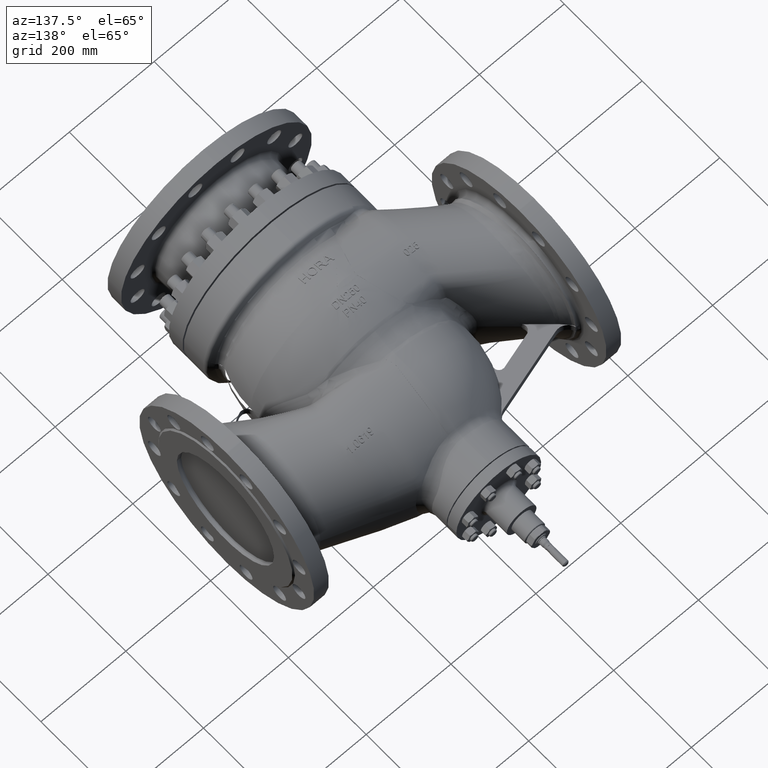
[diagram: clean part render]
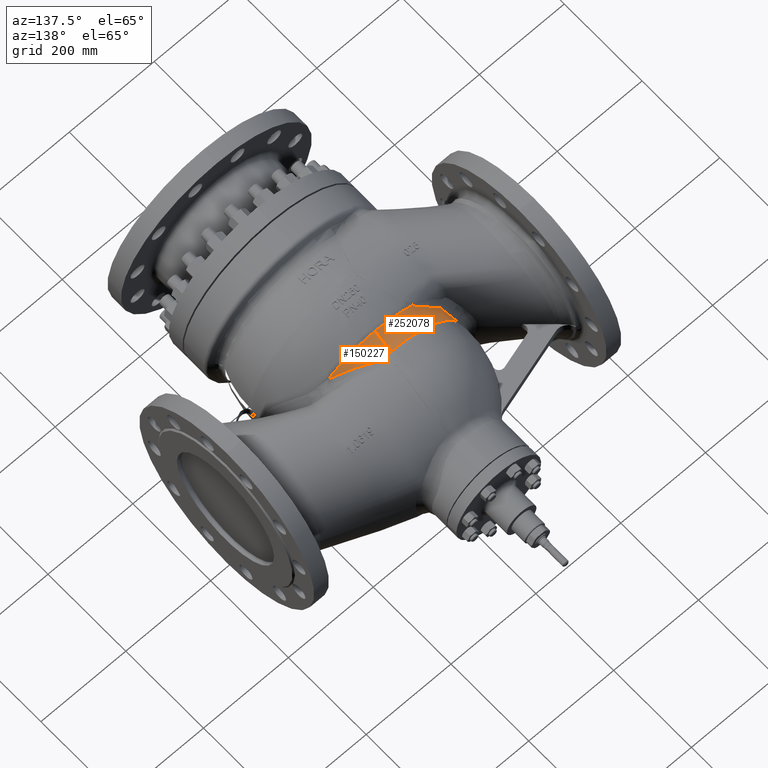
[diagram: same view with one multi-face feature highlighted, each face labeled with its STEP entity id]
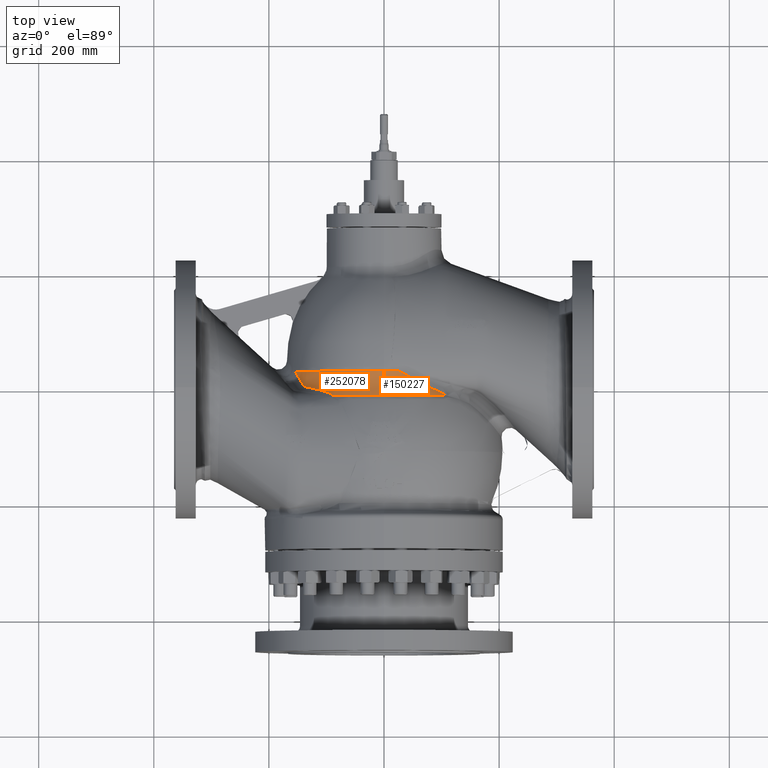
[diagram: same view with one multi-face feature highlighted, each face labeled with its STEP entity id]
A machine part, auxiliary view. The highlighted faces form ONE feature: a constant-radius fillet chain: 2 tangent blend faces with common blend radius 75 mm. The faces share edges in the B-rep.
A second angle (top view) of the same feature is appended — it is thin or edge-on in the first view.
Their STEP definitions:
[1] entity #150227 (Torus):
#2913 = AXIS2_PLACEMENT_3D ( 'NONE', #307393, #158618, #9535 ) ;
#6112 = CARTESIAN_POINT ( 'NONE',  ( 82.07941456179558800, -0.5932283761172524300, 153.6694419497984000 ) ) ;
#9535 = DIRECTION ( 'NONE',  ( 2.775557561562891400E-017, 1.000000000000000000, 0.0000000000000000000 ) ) ;
#19513 = DIRECTION ( 'NONE',  ( 1.000000000000000000, -2.067803239439582300E-017, 0.0000000000000000000 ) ) ;
#24154 = B_SPLINE_CURVE_WITH_KNOTS ( 'NONE', 3,
 ( #130182, #254054, #155174, #6112, #180207, #31117, #205157, #56192, #230157, #81201, #255109, #106220, #280053, #131236 ),
 .UNSPECIFIED., .F., .F.,
 ( 4, 2, 2, 2, 2, 2, 4 ),
 ( 1.271920262156900300E-016, 0.02442169535215101300, 0.04884339070430189500, 0.07326508605645273800, 0.08547593373252816700, 0.09158135757056588800, 0.09768678140860359600 ),
 .UNSPECIFIED. ) ;
#25236 = CARTESIAN_POINT ( 'NONE',  ( -3.031444794915531700E-015, -13.60108526476872700, 181.5415285384767700 ) ) ;
#26183 = CIRCLE ( 'NONE', #2913, 75.00000000000000000 ) ;
#31117 = CARTESIAN_POINT ( 'NONE',  ( 60.88595231698156600, 10.23721949783503500, 159.1527436924764100 ) ) ;
#32072 = DIRECTION ( 'NONE',  ( -1.461890767231333100E-017, 2.338326614928977800E-017, 1.000000000000000000 ) ) ;
#41183 = TOROIDAL_SURFACE ( 'NONE', #217003, 242.7841917345049900, 75.00000000000000000 ) ;
#45388 = CARTESIAN_POINT ( 'NONE',  ( 110.4396305773874600, -13.60108526476873800, 144.0847479159981800 ) ) ;
#56192 = CARTESIAN_POINT ( 'NONE',  ( 43.22994871536861400, 19.76275971794608900, 162.8158313028832500 ) ) ;
#67869 = CARTESIAN_POINT ( 'NONE',  ( -3.775059505209045100E-016, -13.60108526476872400, 3.180377966652705200E-016 ) ) ;
#70807 = AXIS2_PLACEMENT_3D ( 'NONE', #67869, #241780, #92861 ) ;
#81201 = CARTESIAN_POINT ( 'NONE',  ( 34.39855360080698400, 24.65274385075994300, 164.3965068610333200 ) ) ;
#83821 = ORIENTED_EDGE ( 'NONE', *, *, #268510, .T. ) ;
#92861 = DIRECTION ( 'NONE',  ( -1.461890767231333100E-017, -6.688863110053627500E-017, 1.000000000000000000 ) ) ;
#101066 = CARTESIAN_POINT ( 'NONE',  ( -1.628688640482993800E-015, 29.69251939755810500, 167.7841917345050400 ) ) ;
#106118 = DIRECTION ( 'NONE',  ( -2.775557561562891400E-017, -1.000000000000000000, 2.338326614928978400E-017 ) ) ;
#106220 = CARTESIAN_POINT ( 'NONE',  ( 29.11645026787667900, 27.64245697771958600, 165.2697927074587500 ) ) ;
#120517 = VERTEX_POINT ( 'NONE', #25236 ) ;
#129105 = ORIENTED_EDGE ( 'NONE', *, *, #209020, .T. ) ;
#130182 = CARTESIAN_POINT ( 'NONE',  ( 110.4396305773874600, -13.60108526476873800, 144.0847479159981800 ) ) ;
#131236 = CARTESIAN_POINT ( 'NONE',  ( 25.62306450949779100, 29.69251939755797700, 165.8161438495759200 ) ) ;
#137633 = EDGE_CURVE ( 'NONE', #302315, #120517, #162623, .T. ) ;
#138114 = ORIENTED_EDGE ( 'NONE', *, *, #245362, .F. ) ;
#150227 = ADVANCED_FACE ( 'NONE', ( #297868 ), #41183, .F. ) ;
#152708 = EDGE_LOOP ( 'NONE', ( #129105, #83821, #138114, #215026 ) ) ;
#155174 = CARTESIAN_POINT ( 'NONE',  ( 96.23918685965621500, -7.352562097454849300, 149.2746223159857100 ) ) ;
#158618 = DIRECTION ( 'NONE',  ( 1.000000000000000000, -2.775557561562891400E-017, 1.461890767231332800E-017 ) ) ;
#162623 = CIRCLE ( 'NONE', #70807, 181.5415285384767400 ) ;
#168610 = DIRECTION ( 'NONE',  ( -2.775557561562891400E-017, -1.000000000000000000, 2.338326614928978400E-017 ) ) ;
#173780 = CARTESIAN_POINT ( 'NONE',  ( 25.62306450949779100, 29.69251939755797700, 165.8161438495759200 ) ) ;
#180207 = CARTESIAN_POINT ( 'NONE',  ( 75.01216007228062200, 2.941106952050789300, 155.6272869529655100 ) ) ;
#202106 = VERTEX_POINT ( 'NONE', #173780 ) ;
#205157 = CARTESIAN_POINT ( 'NONE',  ( 53.82687267385746600, 13.99946323530676300, 160.7190252771280800 ) ) ;
#209020 = EDGE_CURVE ( 'NONE', #302315, #202106, #24154, .T. ) ;
#215026 = ORIENTED_EDGE ( 'NONE', *, *, #137633, .F. ) ;
#217003 = AXIS2_PLACEMENT_3D ( 'NONE', #304919, #106118, #32072 ) ;
#224465 = AXIS2_PLACEMENT_3D ( 'NONE', #317318, #168610, #19513 ) ;
#230157 = CARTESIAN_POINT ( 'NONE',  ( 39.69503281044711000, 21.70352783413202900, 163.4725023008315600 ) ) ;
#241780 = DIRECTION ( 'NONE',  ( -2.775557561562891400E-017, -1.000000000000000000, 2.338326614928978400E-017 ) ) ;
#245362 = EDGE_CURVE ( 'NONE', #120517, #311863, #26183, .T. ) ;
#254054 = CARTESIAN_POINT ( 'NONE',  ( 103.3321264543338900, -10.57792365335696000, 146.8398777761574400 ) ) ;
#255109 = CARTESIAN_POINT ( 'NONE',  ( 32.63473260823651900, 25.64182972961951300, 164.6942130904878100 ) ) ;
#268510 = EDGE_CURVE ( 'NONE', #202106, #311863, #274316, .T. ) ;
#274316 = CIRCLE ( 'NONE', #224465, 167.7841917345049900 ) ;
#280053 = CARTESIAN_POINT ( 'NONE',  ( 27.36036842507767400, 28.65270359192004100, 165.5476835581467900 ) ) ;
#297868 = FACE_OUTER_BOUND ( 'NONE', #152708, .T. ) ;
#302315 = VERTEX_POINT ( 'NONE', #45388 ) ;
#304919 = CARTESIAN_POINT ( 'NONE',  ( 8.241329673574520500E-016, 29.69251939755809700, -6.943080837160505700E-016 ) ) ;
#307393 = CARTESIAN_POINT ( 'NONE',  ( -2.725106715906494300E-015, 29.69251939755808000, 242.7841917345050400 ) ) ;
#311863 = VERTEX_POINT ( 'NONE', #101066 ) ;
#317318 = CARTESIAN_POINT ( 'NONE',  ( 8.241329673574523400E-016, 29.69251939755810800, -6.943080837160507600E-016 ) ) ;
[2] entity #252078 (Torus):
#1016 = AXIS2_PLACEMENT_3D ( 'NONE', #229576, #7649, #32658 ) ;
#2913 = AXIS2_PLACEMENT_3D ( 'NONE', #307393, #158618, #9535 ) ;
#7649 = DIRECTION ( 'NONE',  ( -2.775557561562891400E-017, -1.000000000000000000, 2.338326614928978400E-017 ) ) ;
#9535 = DIRECTION ( 'NONE',  ( 2.775557561562891400E-017, 1.000000000000000000, 0.0000000000000000000 ) ) ;
#10255 = CARTESIAN_POINT ( 'NONE',  ( -154.2426626617547400, 29.69251939755813700, 66.03586912438773000 ) ) ;
#11339 = CARTESIAN_POINT ( 'NONE',  ( -141.9312288274274700, 8.784175920208644700, 94.93900444020526700 ) ) ;
#12422 = CARTESIAN_POINT ( 'NONE',  ( -139.0807071141081200, 4.326773991904644800, 101.5419510661839600 ) ) ;
#13492 = CARTESIAN_POINT ( 'NONE',  ( -131.6920456074775800, 1.390261255811628300, 112.7223098611463900 ) ) ;
#14120 = CARTESIAN_POINT ( 'NONE',  ( -96.57150497036950300, -8.422051248099240400, 149.7555299136765800 ) ) ;
#19507 = ORIENTED_EDGE ( 'NONE', *, *, #251511, .F. ) ;
#25236 = CARTESIAN_POINT ( 'NONE',  ( -3.031444794915531700E-015, -13.60108526476872700, 181.5415285384767700 ) ) ;
#25586 = CARTESIAN_POINT ( 'NONE',  ( -107.4097094008442500, -4.256566757903815600, 139.3278048455517500 ) ) ;
#25657 = CARTESIAN_POINT ( 'NONE',  ( -154.2426626617547400, 29.69251939755813700, 66.03586912438773000 ) ) ;
#26183 = CIRCLE ( 'NONE', #2913, 75.00000000000000000 ) ;
#32658 = DIRECTION ( 'NONE',  ( -1.461890767231333100E-017, 2.338326614928977800E-017, 1.000000000000000000 ) ) ;
#33274 = EDGE_CURVE ( 'NONE', #271755, #284115, #61485, .T. ) ;
#36362 = CARTESIAN_POINT ( 'NONE',  ( -141.1040152970627400, 7.336351651882386800, 96.93755518183003500 ) ) ;
#37453 = CARTESIAN_POINT ( 'NONE',  ( -138.6556492800292200, 3.944951168365110400, 102.3548835199600100 ) ) ;
#38535 = CARTESIAN_POINT ( 'NONE',  ( -126.9414742485827100, 0.1458555534374118800, 118.8096424778258800 ) ) ;
#39162 = CARTESIAN_POINT ( 'NONE',  ( -93.96576310566482000, -9.736499573810343500, 152.3367126622963800 ) ) ;
#47006 = ORIENTED_EDGE ( 'NONE', *, *, #33274, .T. ) ;
#50275 = CARTESIAN_POINT ( 'NONE',  ( -3.775059505209045100E-016, -13.60108526476872400, 3.180377966652705200E-016 ) ) ;
#56178 = CIRCLE ( 'NONE', #275468, 167.7841917345049900 ) ;
#61448 = CARTESIAN_POINT ( 'NONE',  ( -140.4652778327487700, 6.281639578875768000, 98.45086079004276800 ) ) ;
#61485 = B_SPLINE_CURVE_WITH_KNOTS ( 'NONE', 3,
 ( #10255, #283145, #259257, #110377, #284217, #135413, #309185, #160415, #11339, #185433, #36362, #210393, #61448, #235384, #86451, #260336, #111474, #285304, #136501, #310265, #161506, #12422, #186530, #37453, #211485, #62529, #236456, #87520, #261413, #112547, #286382, #137583, #311341, #162590, #13492, #187601, #38535, #212557, #63606, #237527, #88594, #262488, #113615, #287457, #138669, #312410, #163668, #25586, #287016, #138225, #311972, #163229, #14120, #188231, #39162, #213193, #64247, #238167, #89230, #263127 ),
 .UNSPECIFIED., .F., .F.,
 ( 4, 2, 2, 2, 2, 2, 2, 2, 2, 2, 2, 2, 2, 2, 2, 2, 2, 2, 2, 2, 2, 2, 2, 2, 2, 2, 2, 2, 2, 4 ),
 ( 0.01366503404333760400, 0.02927793532794119300, 0.04489083661254478200, 0.04879406193369569700, 0.05269728725484660500, 0.05464889991542203100, 0.05660051257599746400, 0.05757631890628519400, 0.05806422207142904900, 0.05855212523657291800, 0.05952793156686067600, 0.06050373789714843400, 0.06147954422743619900, 0.06245535055772395000, 0.06343115688801170800, 0.06440696321829947300, 0.06831018853945056100, 0.07611663918175276500, 0.08392308982405498300, 0.08782631514520608500, 0.08977792780578164300, 0.09172954046635718700, 0.09953599110865940500, 0.1073424417509616100, 0.1151488923932638100, 0.1229553430355660300, 0.1268585683567171600, 0.1307617936778682800, 0.1346650189990194500, 0.1385682443201705600 ),
 .UNSPECIFIED. ) ;
#62529 = CARTESIAN_POINT ( 'NONE',  ( -138.2016226132043600, 3.619328638672977500, 103.1676843516505800 ) ) ;
#63606 = CARTESIAN_POINT ( 'NONE',  ( -123.5825648844764700, -0.5725261671916634900, 122.7244047858662300 ) ) ;
#64247 = CARTESIAN_POINT ( 'NONE',  ( -91.46226317655649000, -11.21552120100384500, 154.9416788462491500 ) ) ;
#75308 = DIRECTION ( 'NONE',  ( -1.461890767231333100E-017, -6.688863110053627500E-017, 1.000000000000000000 ) ) ;
#86451 = CARTESIAN_POINT ( 'NONE',  ( -140.0301433910673800, 5.593330134988961300, 99.46633272648199400 ) ) ;
#87520 = CARTESIAN_POINT ( 'NONE',  ( -137.7144891774152300, 3.358406702693585100, 103.9786674259201900 ) ) ;
#88594 = CARTESIAN_POINT ( 'NONE',  ( -121.8496490207665500, -0.8978579429292170600, 124.6424101587249400 ) ) ;
#89230 = CARTESIAN_POINT ( 'NONE',  ( -89.13301149541716500, -12.92672851398151900, 157.6098999352877000 ) ) ;
#94380 = ORIENTED_EDGE ( 'NONE', *, *, #158713, .T. ) ;
#101066 = CARTESIAN_POINT ( 'NONE',  ( -1.628688640482993800E-015, 29.69251939755810500, 167.7841917345050400 ) ) ;
#105786 = CARTESIAN_POINT ( 'NONE',  ( 8.241329673574523400E-016, 29.69251939755810800, -6.943080837160507600E-016 ) ) ;
#110377 = CARTESIAN_POINT ( 'NONE',  ( -147.3682784607218000, 18.26671472515020900, 82.02530176940203400 ) ) ;
#111474 = CARTESIAN_POINT ( 'NONE',  ( -139.8104942034399300, 5.252373777066393900, 99.97546040089748900 ) ) ;
#112547 = CARTESIAN_POINT ( 'NONE',  ( -137.1987209690377700, 3.150688561965446300, 104.7872745919686800 ) ) ;
#113615 = CARTESIAN_POINT ( 'NONE',  ( -120.5259650483076300, -1.124650566352476800, 126.0636585792278500 ) ) ;
#120517 = VERTEX_POINT ( 'NONE', #25236 ) ;
#130807 = DIRECTION ( 'NONE',  ( 1.000000000000000000, -2.067803239439582300E-017, 0.0000000000000000000 ) ) ;
#135413 = CARTESIAN_POINT ( 'NONE',  ( -143.5845744393746500, 11.70755759715971500, 90.96122893245589600 ) ) ;
#136501 = CARTESIAN_POINT ( 'NONE',  ( -139.6450462460492200, 4.997749754240040900, 100.3577821088955500 ) ) ;
#137583 = CARTESIAN_POINT ( 'NONE',  ( -136.1363810320717100, 2.781933119548050600, 106.3988571073220900 ) ) ;
#138225 = CARTESIAN_POINT ( 'NONE',  ( -101.9419794770740000, -6.140240949770670500, 144.5872545820351100 ) ) ;
#138669 = CARTESIAN_POINT ( 'NONE',  ( -116.5051786465231500, -1.873237723032576700, 130.2699681204573200 ) ) ;
#146619 = ORIENTED_EDGE ( 'NONE', *, *, #245362, .T. ) ;
#158618 = DIRECTION ( 'NONE',  ( 1.000000000000000000, -2.775557561562891400E-017, 1.461890767231332800E-017 ) ) ;
#158713 = EDGE_CURVE ( 'NONE', #311863, #271755, #56178, .T. ) ;
#160415 = CARTESIAN_POINT ( 'NONE',  ( -142.3411305561914700, 9.517463890360394500, 93.94483443659828500 ) ) ;
#161506 = CARTESIAN_POINT ( 'NONE',  ( -139.3438106905581400, 4.608588161148952100, 101.0092084026368900 ) ) ;
#162590 = CARTESIAN_POINT ( 'NONE',  ( -133.2081993014958500, 1.840223132599986700, 110.6420122428098000 ) ) ;
#163229 = CARTESIAN_POINT ( 'NONE',  ( -97.45595540126130600, -8.014155184138825700, 148.8966118961979200 ) ) ;
#163668 = CARTESIAN_POINT ( 'NONE',  ( -111.0670826213003600, -3.189857587722075800, 135.7449932387830200 ) ) ;
#185433 = CARTESIAN_POINT ( 'NONE',  ( -141.3122785472822300, 7.695484822253993300, 96.43652763452183800 ) ) ;
#186530 = CARTESIAN_POINT ( 'NONE',  ( -138.9424775950394300, 4.193625350133772600, 101.8123220101157900 ) ) ;
#187601 = CARTESIAN_POINT ( 'NONE',  ( -128.5586848513781000, 0.5430751648661784600, 116.8061260363347200 ) ) ;
#188231 = CARTESIAN_POINT ( 'NONE',  ( -94.82645916757297800, -9.283262922348990600, 151.4756115609937400 ) ) ;
#201923 = CARTESIAN_POINT ( 'NONE',  ( -88.44609679247386700, -13.60108526476872900, 158.5390000796741100 ) ) ;
#208751 = CIRCLE ( 'NONE', #257244, 181.5415285384767400 ) ;
#210393 = CARTESIAN_POINT ( 'NONE',  ( -140.6801728293855000, 6.629950891923237500, 97.94494780866244800 ) ) ;
#211485 = CARTESIAN_POINT ( 'NONE',  ( -138.5076345702655100, 3.829898100462945500, 102.6259971304334600 ) ) ;
#212557 = CARTESIAN_POINT ( 'NONE',  ( -124.4326763673919600, -0.3992725894736281500, 121.7534114443081800 ) ) ;
#213193 = CARTESIAN_POINT ( 'NONE',  ( -92.28388948199955200, -10.70285497644359500, 154.0698619663699600 ) ) ;
#224247 = DIRECTION ( 'NONE',  ( -2.775557561562891400E-017, -1.000000000000000000, 2.338326614928978400E-017 ) ) ;
#229576 = CARTESIAN_POINT ( 'NONE',  ( 8.241329673574520500E-016, 29.69251939755809700, -6.943080837160505700E-016 ) ) ;
#235384 = CARTESIAN_POINT ( 'NONE',  ( -140.1393745726979900, 5.764709925463300500, 99.21215842361476700 ) ) ;
#236456 = CARTESIAN_POINT ( 'NONE',  ( -138.0442516196725900, 3.522477970465402600, 103.4382601709568800 ) ) ;
#237527 = CARTESIAN_POINT ( 'NONE',  ( -122.2856029285028500, -0.8182897045571615500, 124.1649077027035400 ) ) ;
#238167 = CARTESIAN_POINT ( 'NONE',  ( -89.88757102004709100, -12.32818344145005400, 156.7120958320461200 ) ) ;
#245362 = EDGE_CURVE ( 'NONE', #120517, #311863, #26183, .T. ) ;
#251511 = EDGE_CURVE ( 'NONE', #120517, #284115, #208751, .T. ) ;
#252078 = ADVANCED_FACE ( 'NONE', ( #267073 ), #317520, .F. ) ;
#257244 = AXIS2_PLACEMENT_3D ( 'NONE', #50275, #224247, #75308 ) ;
#259257 = CARTESIAN_POINT ( 'NONE',  ( -150.7897275641874200, 24.03634152330948500, 74.06379178829927000 ) ) ;
#260336 = CARTESIAN_POINT ( 'NONE',  ( -139.8654906215172100, 5.337483104758644200, 99.84812187058550100 ) ) ;
#261413 = CARTESIAN_POINT ( 'NONE',  ( -137.5441606358735400, 3.286730724388060100, 104.2484885828124600 ) ) ;
#262488 = CARTESIAN_POINT ( 'NONE',  ( -120.9702937045744300, -1.052046765378735800, 125.5919779305510700 ) ) ;
#263127 = CARTESIAN_POINT ( 'NONE',  ( -88.44609679247386700, -13.60108526476872900, 158.5390000796741100 ) ) ;
#267073 = FACE_OUTER_BOUND ( 'NONE', #286427, .T. ) ;
#271755 = VERTEX_POINT ( 'NONE', #25657 ) ;
#275468 = AXIS2_PLACEMENT_3D ( 'NONE', #105786, #279628, #130807 ) ;
#279628 = DIRECTION ( 'NONE',  ( -2.775557561562891400E-017, -1.000000000000000000, 2.338326614928978400E-017 ) ) ;
#283145 = CARTESIAN_POINT ( 'NONE',  ( -152.5157796240646100, 26.89351629310684200, 70.06942000166967000 ) ) ;
#284115 = VERTEX_POINT ( 'NONE', #201923 ) ;
#284217 = CARTESIAN_POINT ( 'NONE',  ( -145.6724512312553700, 15.35385030304337700, 85.99241283687612700 ) ) ;
#285304 = CARTESIAN_POINT ( 'NONE',  ( -139.7001313077184600, 5.082697368657576000, 100.2303661026329000 ) ) ;
#286382 = CARTESIAN_POINT ( 'NONE',  ( -137.0229280514227000, 3.087779798861533200, 105.0562384442652900 ) ) ;
#286427 = EDGE_LOOP ( 'NONE', ( #146619, #94380, #47006, #19507 ) ) ;
#287016 = CARTESIAN_POINT ( 'NONE',  ( -105.5810649596508300, -4.845244425642644800, 141.0934849429207500 ) ) ;
#287457 = CARTESIAN_POINT ( 'NONE',  ( -118.3007905736181300, -1.508589382048655800, 128.4146292837245700 ) ) ;
#307393 = CARTESIAN_POINT ( 'NONE',  ( -2.725106715906494300E-015, 29.69251939755808000, 242.7841917345050400 ) ) ;
#309185 = CARTESIAN_POINT ( 'NONE',  ( -143.1685878209901000, 10.97800523324137600, 91.95546198323266700 ) ) ;
#310265 = CARTESIAN_POINT ( 'NONE',  ( -139.4694846955692100, 4.757146146344588500, 100.7457823845993100 ) ) ;
#311341 = CARTESIAN_POINT ( 'NONE',  ( -135.4123444353962200, 2.544147972003639500, 107.4667312560676200 ) ) ;
#311863 = VERTEX_POINT ( 'NONE', #101066 ) ;
#311972 = CARTESIAN_POINT ( 'NONE',  ( -100.1308225384005800, -6.845928602553748900, 146.3150629689716300 ) ) ;
#312410 = CARTESIAN_POINT ( 'NONE',  ( -112.8883696835338200, -2.713918951116718800, 133.9351793670672900 ) ) ;
#317520 = TOROIDAL_SURFACE ( 'NONE', #1016, 242.7841917345049900, 75.00000000000000000 ) ;